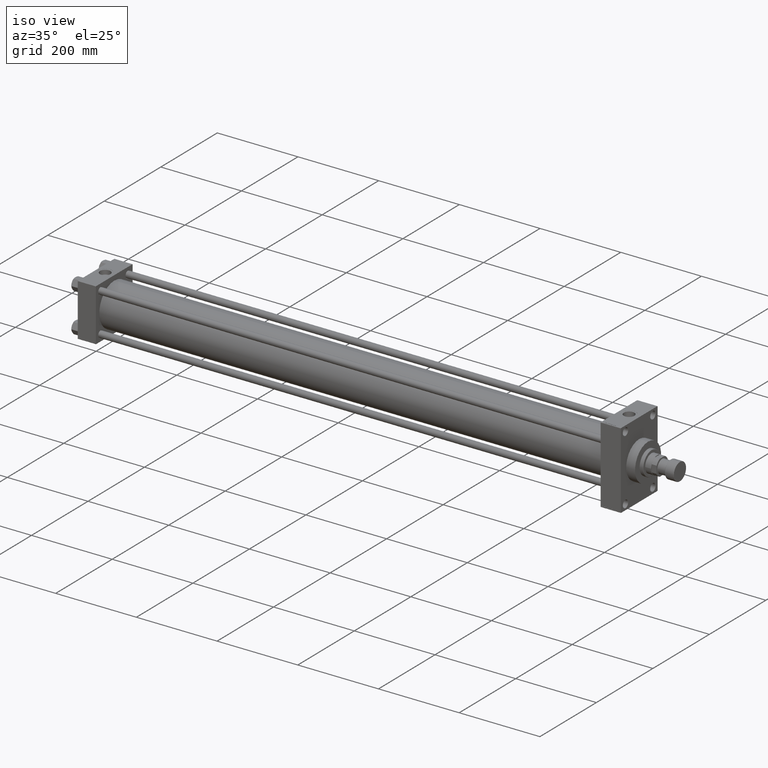
[diagram: clean part render]
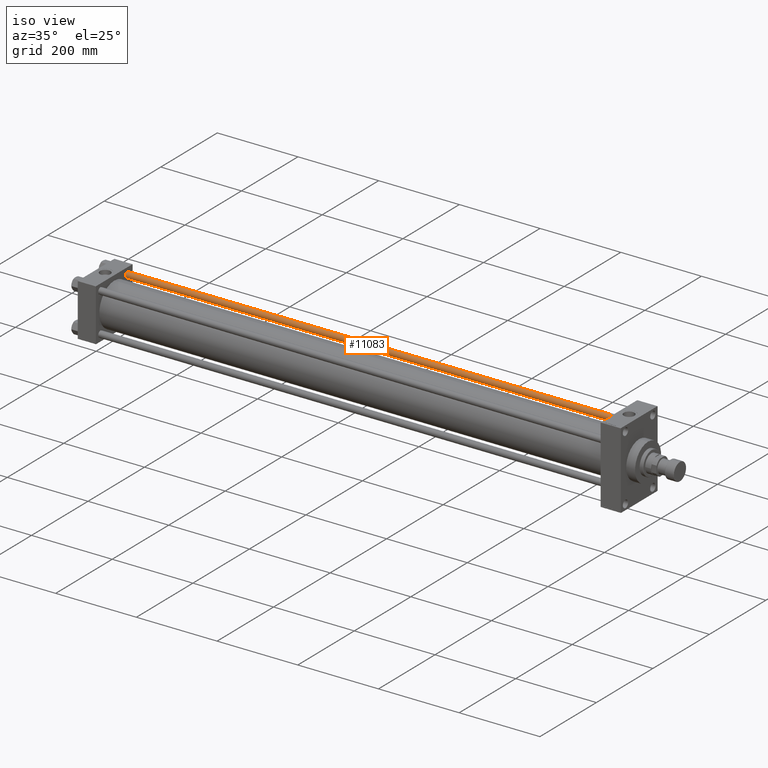
[diagram: same view with one face highlighted and labeled with its STEP entity id]
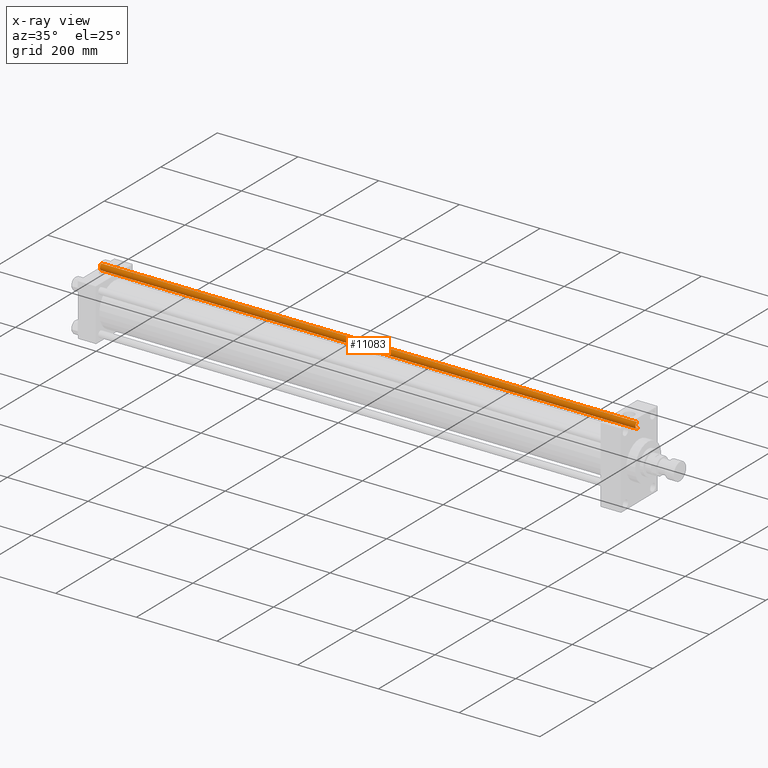
[diagram: x-ray of the same camera — body ghosted, the highlighted face saturated]
A machine part, iso view. The second image highlights one B-rep face of the part: STEP entity #11083.
The next image is the same camera in x-ray: the body ghosted, the highlighted face saturated — about 0% of this face is hidden behind the body in this view.
In plain terms, the highlighted cylindrical surface (edge-blend (fillet) strip) has radius 8 mm, axis along (-1, -0, 0).
Its self-contained STEP definition (entity closure, byte-faithful):
#731 = DIRECTION ( 'NONE',  ( 1.000000000000000000, 0.000000000000000000, 0.000000000000000000 ) ) ;
#2493 = CIRCLE ( 'NONE', #4816, 8.000000000000000000 ) ;
#3463 = CARTESIAN_POINT ( 'NONE',  ( -8.000000000000000000, 0.000000000000000000, 0.5000000000001669775 ) ) ;
#4816 = AXIS2_PLACEMENT_3D ( 'NONE', #30146, #45478, #731 ) ;
#5119 = EDGE_CURVE ( 'NONE', #33205, #43701, #15087, .T. ) ;
#5442 = ORIENTED_EDGE ( 'NONE', *, *, #40802, .T. ) ;
#6545 = DIRECTION ( 'NONE',  ( 0.000000000000000000, 0.000000000000000000, -1.000000000000000000 ) ) ;
#7727 = ORIENTED_EDGE ( 'NONE', *, *, #41928, .T. ) ;
#7897 = FACE_OUTER_BOUND ( 'NONE', #9280, .T. ) ;
#9280 = EDGE_LOOP ( 'NONE', ( #22130, #7727, #35911, #5442 ) ) ;
#11083 = ADVANCED_FACE ( 'NONE', ( #7897 ), #19327, .T. ) ;
#13929 = VECTOR ( 'NONE', #22164, 1000.000000000000000 ) ;
#14603 = CARTESIAN_POINT ( 'NONE',  ( 8.000000000000000000, 9.797174393178825657E-16, 1329.000000000000000 ) ) ;
#15087 = LINE ( 'NONE', #14603, #13929 ) ;
#16269 = CARTESIAN_POINT ( 'NONE',  ( 8.000000000000000000, 9.797174393178825657E-16, 1328.500000000000227 ) ) ;
#17809 = CARTESIAN_POINT ( 'NONE',  ( -8.000000000000000000, 0.000000000000000000, 1328.500000000000227 ) ) ;
#17936 = VERTEX_POINT ( 'NONE', #17809 ) ;
#18581 = VECTOR ( 'NONE', #20257, 1000.000000000000000 ) ;
#19327 = CYLINDRICAL_SURFACE ( 'NONE', #33539, 8.000000000000000000 ) ;
#20257 = DIRECTION ( 'NONE',  ( -0.000000000000000000, -0.000000000000000000, -1.000000000000000000 ) ) ;
#22130 = ORIENTED_EDGE ( 'NONE', *, *, #5119, .F. ) ;
#22164 = DIRECTION ( 'NONE',  ( -0.000000000000000000, -0.000000000000000000, -1.000000000000000000 ) ) ;
#27108 = DIRECTION ( 'NONE',  ( -0.000000000000000000, -0.000000000000000000, -1.000000000000000000 ) ) ;
#30146 = CARTESIAN_POINT ( 'NONE',  ( 0.000000000000000000, 0.000000000000000000, 0.5000000000001669775 ) ) ;
#32185 = CARTESIAN_POINT ( 'NONE',  ( -8.000000000000000000, 0.000000000000000000, 1329.000000000000000 ) ) ;
#32605 = EDGE_CURVE ( 'NONE', #17936, #43757, #35825, .T. ) ;
#32840 = CIRCLE ( 'NONE', #47601, 8.000000000000000000 ) ;
#33205 = VERTEX_POINT ( 'NONE', #16269 ) ;
#33539 = AXIS2_PLACEMENT_3D ( 'NONE', #41948, #27108, #33932 ) ;
#33932 = DIRECTION ( 'NONE',  ( -1.000000000000000000, 0.000000000000000000, 0.000000000000000000 ) ) ;
#35825 = LINE ( 'NONE', #32185, #18581 ) ;
#35911 = ORIENTED_EDGE ( 'NONE', *, *, #32605, .T. ) ;
#36064 = CARTESIAN_POINT ( 'NONE',  ( 8.000000000000000000, 9.797174393178825657E-16, 0.5000000000001669775 ) ) ;
#39634 = DIRECTION ( 'NONE',  ( 1.000000000000000000, 0.000000000000000000, 0.000000000000000000 ) ) ;
#40802 = EDGE_CURVE ( 'NONE', #43757, #43701, #2493, .T. ) ;
#41928 = EDGE_CURVE ( 'NONE', #33205, #17936, #32840, .T. ) ;
#41948 = CARTESIAN_POINT ( 'NONE',  ( 0.000000000000000000, 0.000000000000000000, 1329.000000000000000 ) ) ;
#43701 = VERTEX_POINT ( 'NONE', #36064 ) ;
#43757 = VERTEX_POINT ( 'NONE', #3463 ) ;
#44013 = CARTESIAN_POINT ( 'NONE',  ( 0.000000000000000000, 0.000000000000000000, 1328.500000000000227 ) ) ;
#45478 = DIRECTION ( 'NONE',  ( -0.000000000000000000, -0.000000000000000000, 1.000000000000000000 ) ) ;
#47601 = AXIS2_PLACEMENT_3D ( 'NONE', #44013, #6545, #39634 ) ;